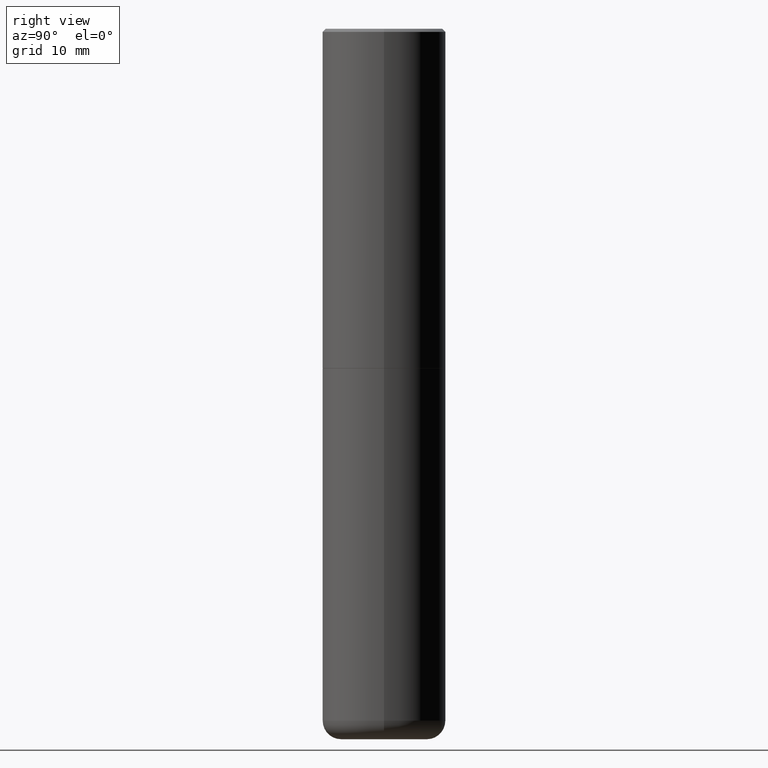
[diagram: clean part render]
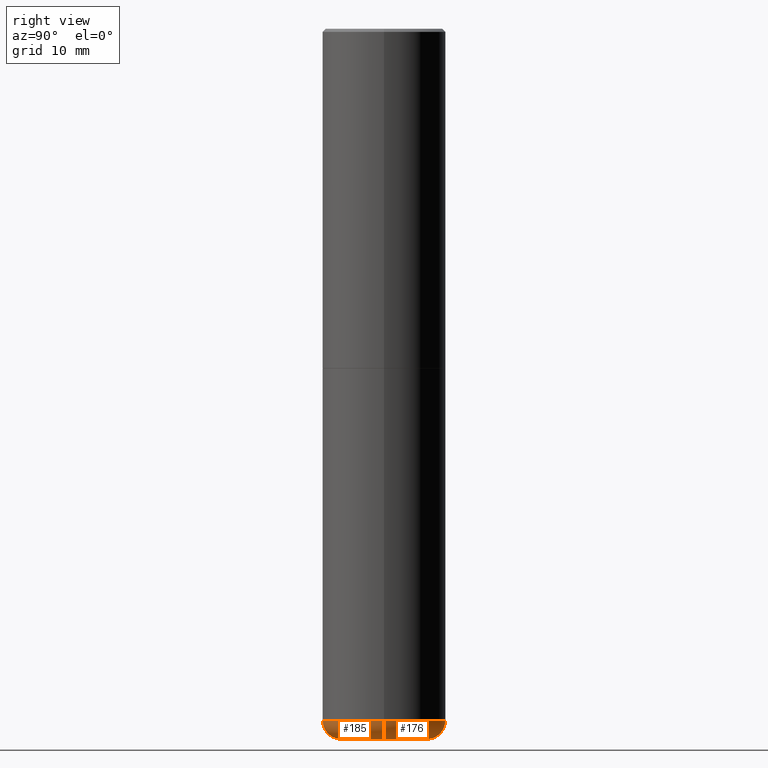
[diagram: same view with one multi-face feature highlighted, each face labeled with its STEP entity id]
A machine part, right view. The highlighted faces form ONE feature: a constant-radius fillet chain: 2 tangent blend faces with common blend radius 2.9997 mm. The faces share edges in the B-rep.
Their STEP definitions:
[1] entity #185 (Torus):
#9 = AXIS2_PLACEMENT_3D ( 'NONE', #35, #159, #190 ) ;
#14 = CARTESIAN_POINT ( 'NONE',  ( -0.2756000000000000116, -1.322402767146636311E-14, -4.527599999999998737 ) ) ;
#16 = CARTESIAN_POINT ( 'NONE',  ( 0.2756000000000000116, -1.773253542371655569E-14, -4.527599999999998737 ) ) ;
#22 = CARTESIAN_POINT ( 'NONE',  ( 1.078329470087335798E-28, -1.539568696362884818E-14, -4.409499999999999531 ) ) ;
#33 = CARTESIAN_POINT ( 'NONE',  ( 0.2756000000000000116, -1.732019147759918314E-14, -4.409499999999999531 ) ) ;
#35 = CARTESIAN_POINT ( 'NONE',  ( 1.107210456688382074E-28, -1.580803090974622074E-14, -4.527599999999998737 ) ) ;
#41 = DIRECTION ( 'NONE',  ( -2.445468806185136597E-29, 3.491481338843145583E-15, 1.000000000000000000 ) ) ;
#44 = CIRCLE ( 'NONE', #319, 0.1180999999999997191 ) ;
#62 = DIRECTION ( 'NONE',  ( -1.000000000000000000, 7.105427357601005014E-15, 0.000000000000000000 ) ) ;
#78 = DIRECTION ( 'NONE',  ( 1.000000000000000000, -6.982962677686268288E-15, 4.883557194083112901E-29 ) ) ;
#89 = VERTEX_POINT ( 'NONE', #14 ) ;
#98 = DIRECTION ( 'NONE',  ( 7.105427357601001859E-15, 1.000000000000000000, -3.491481338843145583E-15 ) ) ;
#101 = CIRCLE ( 'NONE', #243, 0.3936999999999999389 ) ;
#105 = CIRCLE ( 'NONE', #9, 0.2756000000000000116 ) ;
#110 = EDGE_CURVE ( 'NONE', #89, #289, #44, .T. ) ;
#136 = DIRECTION ( 'NONE',  ( 1.000000000000000000, -6.982962677686265133E-15, 0.000000000000000000 ) ) ;
#157 = DIRECTION ( 'NONE',  ( 1.000000000000000000, -6.982962677686273021E-15, 0.000000000000000000 ) ) ;
#159 = DIRECTION ( 'NONE',  ( -2.445468806185136597E-29, 3.491481338843145583E-15, 1.000000000000000000 ) ) ;
#173 = ORIENTED_EDGE ( 'NONE', *, *, #110, .F. ) ;
#182 = ORIENTED_EDGE ( 'NONE', *, *, #322, .T. ) ;
#185 = ADVANCED_FACE ( 'NONE', ( #240 ), #202, .T. ) ;
#190 = DIRECTION ( 'NONE',  ( 1.000000000000000000, -6.982962677686265922E-15, 0.000000000000000000 ) ) ;
#202 = TOROIDAL_SURFACE ( 'NONE', #220, 0.2756000000000000116, 0.1180999999999997052 ) ;
#206 = CARTESIAN_POINT ( 'NONE',  ( 0.3936999999999998279, -1.814487936983393140E-14, -4.409499999999999531 ) ) ;
#209 = CARTESIAN_POINT ( 'NONE',  ( 1.078329470087335798E-28, -1.539568696362884818E-14, -4.409499999999999531 ) ) ;
#215 = VERTEX_POINT ( 'NONE', #206 ) ;
#220 = AXIS2_PLACEMENT_3D ( 'NONE', #22, #382, #78 ) ;
#233 = EDGE_LOOP ( 'NONE', ( #173, #182, #338, #234 ) ) ;
#234 = ORIENTED_EDGE ( 'NONE', *, *, #272, .F. ) ;
#240 = FACE_OUTER_BOUND ( 'NONE', #233, .T. ) ;
#243 = AXIS2_PLACEMENT_3D ( 'NONE', #209, #41, #136 ) ;
#272 = EDGE_CURVE ( 'NONE', #289, #215, #101, .T. ) ;
#289 = VERTEX_POINT ( 'NONE', #411 ) ;
#317 = EDGE_CURVE ( 'NONE', #372, #215, #401, .T. ) ;
#319 = AXIS2_PLACEMENT_3D ( 'NONE', #392, #98, #62 ) ;
#322 = EDGE_CURVE ( 'NONE', #89, #372, #105, .T. ) ;
#335 = AXIS2_PLACEMENT_3D ( 'NONE', #33, #399, #157 ) ;
#338 = ORIENTED_EDGE ( 'NONE', *, *, #317, .T. ) ;
#372 = VERTEX_POINT ( 'NONE', #16 ) ;
#382 = DIRECTION ( 'NONE',  ( -2.445468806185136597E-29, 3.491481338843145583E-15, 1.000000000000000000 ) ) ;
#392 = CARTESIAN_POINT ( 'NONE',  ( -0.2756000000000000116, -1.343743118387401317E-14, -4.409499999999999531 ) ) ;
#399 = DIRECTION ( 'NONE',  ( -6.982962677686266711E-15, -1.000000000000000000, 3.491481338843145583E-15 ) ) ;
#401 = CIRCLE ( 'NONE', #335, 0.1180999999999997191 ) ;
#411 = CARTESIAN_POINT ( 'NONE',  ( -0.3936999999999998279, -1.259828021294133576E-14, -4.409499999999999531 ) ) ;
[2] entity #176 (Torus):
#12 = DIRECTION ( 'NONE',  ( -2.445468806185136597E-29, 3.491481338843145583E-15, 1.000000000000000000 ) ) ;
#14 = CARTESIAN_POINT ( 'NONE',  ( -0.2756000000000000116, -1.322402767146636311E-14, -4.527599999999998737 ) ) ;
#16 = CARTESIAN_POINT ( 'NONE',  ( 0.2756000000000000116, -1.773253542371655569E-14, -4.527599999999998737 ) ) ;
#24 = TOROIDAL_SURFACE ( 'NONE', #186, 0.2756000000000000116, 0.1180999999999997052 ) ;
#33 = CARTESIAN_POINT ( 'NONE',  ( 0.2756000000000000116, -1.732019147759918314E-14, -4.409499999999999531 ) ) ;
#36 = AXIS2_PLACEMENT_3D ( 'NONE', #284, #207, #316 ) ;
#44 = CIRCLE ( 'NONE', #319, 0.1180999999999997191 ) ;
#62 = DIRECTION ( 'NONE',  ( -1.000000000000000000, 7.105427357601005014E-15, 0.000000000000000000 ) ) ;
#89 = VERTEX_POINT ( 'NONE', #14 ) ;
#98 = DIRECTION ( 'NONE',  ( 7.105427357601001859E-15, 1.000000000000000000, -3.491481338843145583E-15 ) ) ;
#99 = DIRECTION ( 'NONE',  ( 1.000000000000000000, -6.982962677686268288E-15, 4.883557194083112901E-29 ) ) ;
#102 = FACE_OUTER_BOUND ( 'NONE', #138, .T. ) ;
#110 = EDGE_CURVE ( 'NONE', #89, #289, #44, .T. ) ;
#138 = EDGE_LOOP ( 'NONE', ( #337, #283, #150, #238 ) ) ;
#150 = ORIENTED_EDGE ( 'NONE', *, *, #236, .F. ) ;
#153 = CIRCLE ( 'NONE', #36, 0.2756000000000000116 ) ;
#157 = DIRECTION ( 'NONE',  ( 1.000000000000000000, -6.982962677686273021E-15, 0.000000000000000000 ) ) ;
#176 = ADVANCED_FACE ( 'NONE', ( #102 ), #24, .T. ) ;
#186 = AXIS2_PLACEMENT_3D ( 'NONE', #255, #398, #99 ) ;
#206 = CARTESIAN_POINT ( 'NONE',  ( 0.3936999999999998279, -1.814487936983393140E-14, -4.409499999999999531 ) ) ;
#207 = DIRECTION ( 'NONE',  ( -2.445468806185136597E-29, 3.491481338843145583E-15, 1.000000000000000000 ) ) ;
#215 = VERTEX_POINT ( 'NONE', #206 ) ;
#236 = EDGE_CURVE ( 'NONE', #215, #289, #391, .T. ) ;
#238 = ORIENTED_EDGE ( 'NONE', *, *, #317, .F. ) ;
#255 = CARTESIAN_POINT ( 'NONE',  ( 1.078329470087335798E-28, -1.539568696362884818E-14, -4.409499999999999531 ) ) ;
#266 = CARTESIAN_POINT ( 'NONE',  ( 1.078329470087335798E-28, -1.539568696362884818E-14, -4.409499999999999531 ) ) ;
#279 = AXIS2_PLACEMENT_3D ( 'NONE', #266, #12, #369 ) ;
#283 = ORIENTED_EDGE ( 'NONE', *, *, #110, .T. ) ;
#284 = CARTESIAN_POINT ( 'NONE',  ( 1.107210456688382074E-28, -1.580803090974622074E-14, -4.527599999999998737 ) ) ;
#289 = VERTEX_POINT ( 'NONE', #411 ) ;
#316 = DIRECTION ( 'NONE',  ( 1.000000000000000000, -6.982962677686265922E-15, 0.000000000000000000 ) ) ;
#317 = EDGE_CURVE ( 'NONE', #372, #215, #401, .T. ) ;
#319 = AXIS2_PLACEMENT_3D ( 'NONE', #392, #98, #62 ) ;
#335 = AXIS2_PLACEMENT_3D ( 'NONE', #33, #399, #157 ) ;
#337 = ORIENTED_EDGE ( 'NONE', *, *, #355, .T. ) ;
#355 = EDGE_CURVE ( 'NONE', #372, #89, #153, .T. ) ;
#369 = DIRECTION ( 'NONE',  ( 1.000000000000000000, -6.982962677686265133E-15, 0.000000000000000000 ) ) ;
#372 = VERTEX_POINT ( 'NONE', #16 ) ;
#391 = CIRCLE ( 'NONE', #279, 0.3936999999999999389 ) ;
#392 = CARTESIAN_POINT ( 'NONE',  ( -0.2756000000000000116, -1.343743118387401317E-14, -4.409499999999999531 ) ) ;
#398 = DIRECTION ( 'NONE',  ( -2.445468806185136597E-29, 3.491481338843145583E-15, 1.000000000000000000 ) ) ;
#399 = DIRECTION ( 'NONE',  ( -6.982962677686266711E-15, -1.000000000000000000, 3.491481338843145583E-15 ) ) ;
#401 = CIRCLE ( 'NONE', #335, 0.1180999999999997191 ) ;
#411 = CARTESIAN_POINT ( 'NONE',  ( -0.3936999999999998279, -1.259828021294133576E-14, -4.409499999999999531 ) ) ;